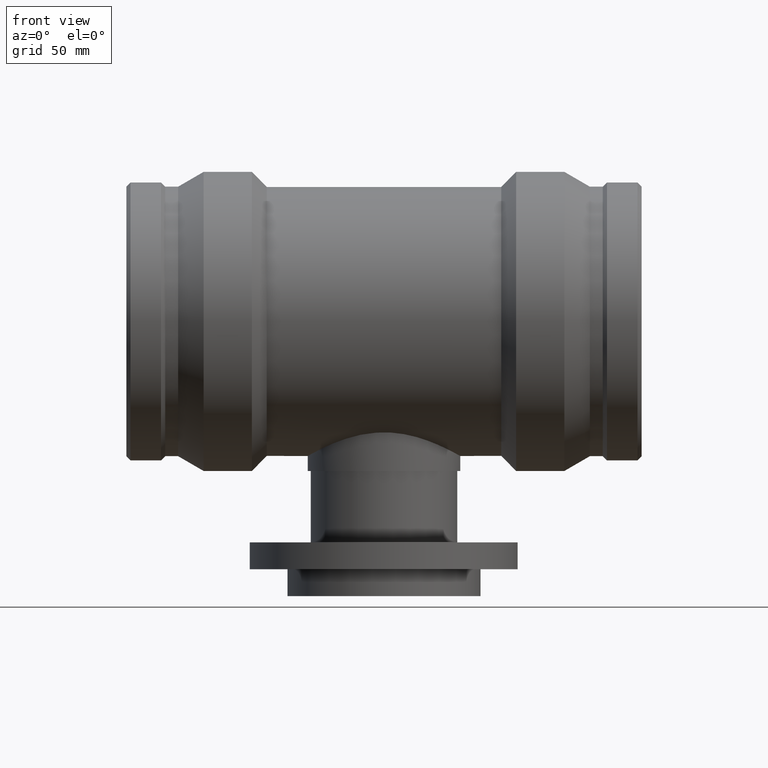
[diagram: clean part render]
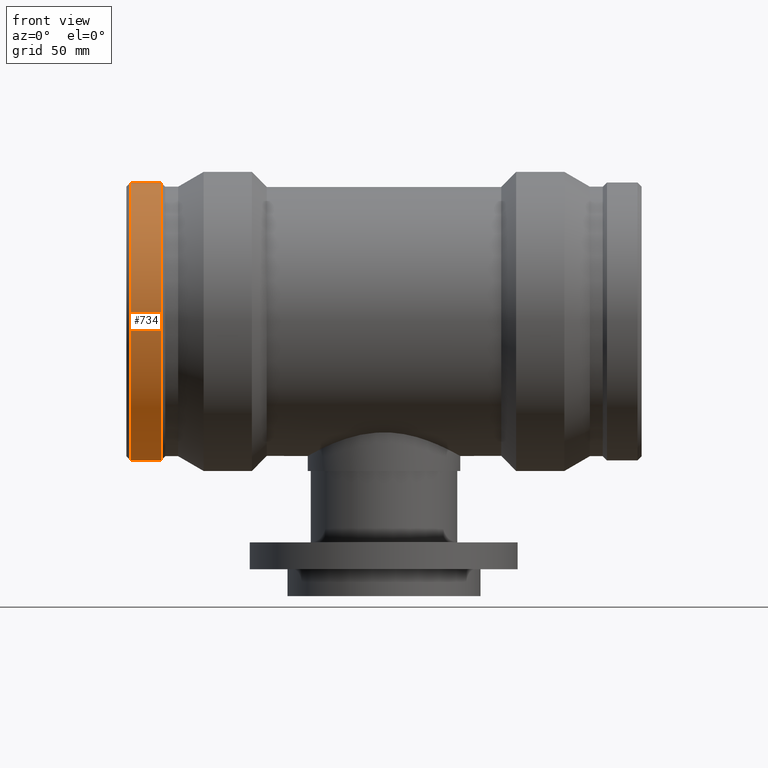
[diagram: same view with one face highlighted and labeled with its STEP entity id]
A machine part, front view. The second image highlights one B-rep face of the part: STEP entity #734.
In plain terms, the highlighted cylindrical surface (bore or boss wall) has radius 113.925 mm, axis along (1, 0, 0).
Its self-contained STEP definition (entity closure, byte-faithful):
#93=FACE_BOUND('',#360,.T.);
#94=FACE_BOUND('',#361,.T.);
#161=CIRCLE('',#835,113.925);
#162=CIRCLE('',#837,113.925);
#204=CYLINDRICAL_SURFACE('',#836,113.925);
#250=FACE_OUTER_BOUND('',#359,.T.);
#359=EDGE_LOOP('',(#645));
#360=EDGE_LOOP('',(#646));
#361=EDGE_LOOP('',(#647));
#418=B_SPLINE_CURVE_WITH_KNOTS('',3,(#1617,#1618,#1619,#1620,#1621,#1622,
#1623,#1624,#1625,#1626,#1627,#1628,#1629,#1630,#1631,#1632,#1633,#1634,
#1635,#1636,#1637,#1638,#1639,#1640,#1641,#1642,#1643,#1644,#1645,#1646,
#1647,#1648,#1649,#1650),.UNSPECIFIED.,.T.,.F.,(4,2,2,2,2,2,2,2,2,2,2,2,
2,2,2,2,4),(0.,0.289976652309075,0.57995330461815,0.869733199695018,1.15951309477189,
1.44929298984875,1.73907288492562,2.0290495372347,2.31902618954377,2.60900284185285,
2.89897949416192,3.18875938923879,3.47853928431566,3.76831917939252,4.05809907446939,
4.34807572677847,4.63805237908754),.UNSPECIFIED.);
#461=VERTEX_POINT('',#1616);
#464=VERTEX_POINT('',#1657);
#465=VERTEX_POINT('',#1660);
#531=EDGE_CURVE('',#461,#461,#418,.T.);
#534=EDGE_CURVE('',#464,#464,#161,.T.);
#535=EDGE_CURVE('',#465,#465,#162,.T.);
#645=ORIENTED_EDGE('',*,*,#534,.T.);
#646=ORIENTED_EDGE('',*,*,#531,.T.);
#647=ORIENTED_EDGE('',*,*,#535,.F.);
#734=ADVANCED_FACE('',(#250,#93,#94),#204,.T.);
#835=AXIS2_PLACEMENT_3D('',#1658,#1035,#1036);
#836=AXIS2_PLACEMENT_3D('',#1659,#1037,#1038);
#837=AXIS2_PLACEMENT_3D('',#1661,#1039,#1040);
#1035=DIRECTION('center_axis',(1.,0.,0.));
#1036=DIRECTION('ref_axis',(0.,0.,-1.));
#1037=DIRECTION('center_axis',(1.,0.,0.));
#1038=DIRECTION('ref_axis',(0.,1.,0.));
#1039=DIRECTION('center_axis',(1.,0.,0.));
#1040=DIRECTION('ref_axis',(0.,0.,-1.));
#1616=CARTESIAN_POINT('',(-195.1,113.664191865101,-7.70435673197531));
#1617=CARTESIAN_POINT('Ctrl Pts',(-195.1,113.664191865101,-7.70435673197531));
#1618=CARTESIAN_POINT('Ctrl Pts',(-194.13341115897,113.664191865101,-7.70435673197531));
#1619=CARTESIAN_POINT('Ctrl Pts',(-193.10293485479,113.677872986196,-7.51018105522845));
#1620=CARTESIAN_POINT('Ctrl Pts',(-191.208700800041,113.727214126636,-6.72178490893874));
#1621=CARTESIAN_POINT('Ctrl Pts',(-190.344910399783,113.76215572232,-6.12759808731818));
#1622=CARTESIAN_POINT('Ctrl Pts',(-188.982455214489,113.82763425459,-4.75863167702574));
#1623=CARTESIAN_POINT('Ctrl Pts',(-188.39263053027,113.862425668092,-3.89272059660754));
#1624=CARTESIAN_POINT('Ctrl Pts',(-187.610633192907,113.911455606152,-1.99638029116836));
#1625=CARTESIAN_POINT('Ctrl Pts',(-187.418461023184,113.925,-0.96593298358956));
#1626=CARTESIAN_POINT('Ctrl Pts',(-187.418461023184,113.925,0.96593298358956));
#1627=CARTESIAN_POINT('Ctrl Pts',(-187.610633192907,113.911455606152,1.99638029116836));
#1628=CARTESIAN_POINT('Ctrl Pts',(-188.39263053027,113.862425668092,3.89272059660754));
#1629=CARTESIAN_POINT('Ctrl Pts',(-188.982455214489,113.82763425459,4.75863167702574));
#1630=CARTESIAN_POINT('Ctrl Pts',(-190.344910399783,113.76215572232,6.12759808731819));
#1631=CARTESIAN_POINT('Ctrl Pts',(-191.208700800042,113.727214126636,6.72178490893878));
#1632=CARTESIAN_POINT('Ctrl Pts',(-193.102934854791,113.677872986196,7.51018105522848));
#1633=CARTESIAN_POINT('Ctrl Pts',(-194.13341115897,113.664191865101,7.7043567319753));
#1634=CARTESIAN_POINT('Ctrl Pts',(-196.06658884103,113.664191865101,7.7043567319753));
#1635=CARTESIAN_POINT('Ctrl Pts',(-197.09706514521,113.677872986196,7.51018105522845));
#1636=CARTESIAN_POINT('Ctrl Pts',(-198.991299199959,113.727214126636,6.72178490893874));
#1637=CARTESIAN_POINT('Ctrl Pts',(-199.855089600217,113.76215572232,6.12759808731818));
#1638=CARTESIAN_POINT('Ctrl Pts',(-201.217544785511,113.82763425459,4.75863167702574));
#1639=CARTESIAN_POINT('Ctrl Pts',(-201.80736946973,113.862425668092,3.89272059660754));
#1640=CARTESIAN_POINT('Ctrl Pts',(-202.589366807093,113.911455606152,1.99638029116835));
#1641=CARTESIAN_POINT('Ctrl Pts',(-202.781538976816,113.925,0.96593298358956));
#1642=CARTESIAN_POINT('Ctrl Pts',(-202.781538976816,113.925,-0.965932983589559));
#1643=CARTESIAN_POINT('Ctrl Pts',(-202.589366807093,113.911455606152,-1.99638029116835));
#1644=CARTESIAN_POINT('Ctrl Pts',(-201.80736946973,113.862425668092,-3.89272059660754));
#1645=CARTESIAN_POINT('Ctrl Pts',(-201.217544785511,113.82763425459,-4.75863167702574));
#1646=CARTESIAN_POINT('Ctrl Pts',(-199.855089600217,113.76215572232,-6.12759808731818));
#1647=CARTESIAN_POINT('Ctrl Pts',(-198.991299199959,113.727214126636,-6.72178490893874));
#1648=CARTESIAN_POINT('Ctrl Pts',(-197.09706514521,113.677872986196,-7.51018105522845));
#1649=CARTESIAN_POINT('Ctrl Pts',(-196.06658884103,113.664191865101,-7.70435673197531));
#1650=CARTESIAN_POINT('Ctrl Pts',(-195.1,113.664191865101,-7.70435673197531));
#1657=CARTESIAN_POINT('',(-207.58225,113.925,0.));
#1658=CARTESIAN_POINT('Origin',(-207.58225,0.,0.));
#1659=CARTESIAN_POINT('Origin',(-195.1,0.,0.));
#1660=CARTESIAN_POINT('',(-182.61775,113.925,0.));
#1661=CARTESIAN_POINT('Origin',(-182.61775,0.,0.));